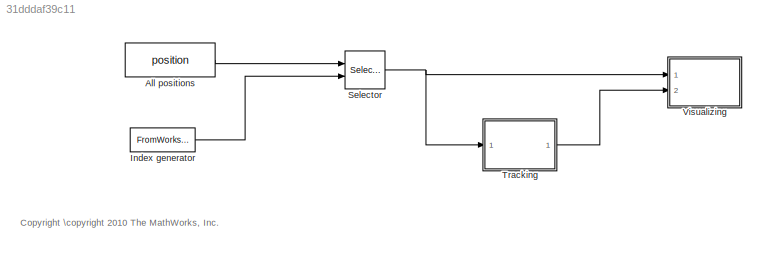
MODEL slx_31dddaf39c11
KIND model
CONFIG AbsTol = auto
CONFIG EnableMultiTasking = on
CONFIG FixedStep = auto
CONFIG InitFcn = load position.mat;\nidx=[ 1 1 ;2 3 ;4 6 ;7 10 ;11 15 ;16 30 ;\n     31 70 ;71 100 ;101 200 ;201 250 ;251 310];\nLEN=length(idx);\nt=(0:1:LEN-1)';
CONFIG MaxStep = auto
CONFIG MinStep = auto
CONFIG RelTol = 1e-3
CONFIG SampleTimeConstraint = Unconstrained
CONFIG Solver = FixedStepDiscrete
CONFIG SolverName = FixedStepDiscrete
CONFIG StartTime = 0.0
CONFIG StopTime = 10
BLOCK [Constant] All positions
  Value = position
BLOCK [FromWorkspace] Index generator
  Interpolate = off
  OutputAfterFinalValue = Holding final value
  SampleTime = 1
  VariableName = [t idx]
BLOCK [Selector] Selector
  IndexOptions = Select all,Starting and ending indices (port)
  Indices = [1 3],2
  InputPortWidth = 2
  NumberOfDimensions = 2
  OutputSizes = 1,FRAME_SIZE
  Ports = [2, 1]
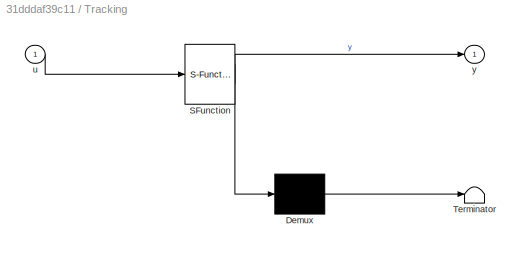
BLOCK [SubSystem] Tracking
  ErrorFcn = Stateflow.Translate.translate
  PermitHierarchicalResolution = ExplicitOnly
  Ports = [1, 1]
  RequestExecContextInheritance = off
  SFBlockType = MATLAB Function
  TreatAsAtomicUnit = on
  Variant = off
BLOCK [Demux] Tracking/ Demux 
  Outputs = 1
  Ports = [1, 1]
BLOCK [S-Function] Tracking/ SFunction 
  EnableBusSupport = on
  FunctionName = sf_sfun
  PortCounts = [1 2]
  Ports = [1, 2]
  SFcnIsStateOwnerBlock = off
  SFunctionDeploymentMode = off
  Tag = Stateflow S-Function ex_kalman33 1
BLOCK [Terminator] Tracking/ Terminator 
BLOCK [Inport] Tracking/u
  IconDisplay = Port number
BLOCK [Outport] Tracking/y
  IconDisplay = Port number
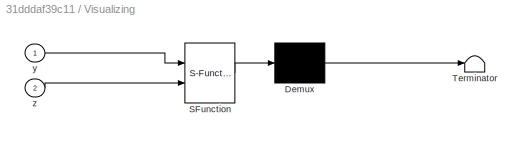
BLOCK [SubSystem] Visualizing
  ErrorFcn = Stateflow.Translate.translate
  PermitHierarchicalResolution = ExplicitOnly
  Ports = [2]
  RequestExecContextInheritance = off
  SFBlockType = MATLAB Function
  TreatAsAtomicUnit = on
  Variant = off
BLOCK [Demux] Visualizing/ Demux 
  Outputs = 1
  Ports = [1, 1]
BLOCK [S-Function] Visualizing/ SFunction 
  EnableBusSupport = on
  FunctionName = sf_sfun
  PortCounts = [2 1]
  Ports = [2, 1]
  SFcnIsStateOwnerBlock = off
  SFunctionDeploymentMode = off
  Tag = Stateflow S-Function ex_kalman33 2
BLOCK [Terminator] Visualizing/ Terminator 
BLOCK [Inport] Visualizing/y
  IconDisplay = Port number
BLOCK [Inport] Visualizing/z
  IconDisplay = Port number
  Port = 2
ANNOTATION (root): <copyright redacted>
LINE All positions:1 -> Selector:1
LINE Index generator:1 -> Selector:2
NET Selector:1 -> Tracking:1, Visualizing:1
LINE Tracking:1 -> Visualizing:2
note: NET lines group one-source signal fan-out (src -> all destinations, sorted); 1:1 wires keep LINE
CHART Tracking states=1 transitions=1
  STATE_LABEL 'eML_blk_kernel()'
  STATE_LABEL 'SCRIPT:\nfunction y = kalman(u)\n%#codegen\ny = ex_kalman03(u);'
CHART Visualizing states=1 transitions=1
  STATE_LABEL 'eML_blk_kernel()'
  STATE_LABEL "SCRIPT:\nfunction plot_me(y,z)\n%#codegen\ncoder.extrinsic('figure','hold','plot_trajectory');\npersistent h\nif isempty(h)\n  h=figure;\n  hold;\nend\nplot_trajectory(y,z);\nend"
